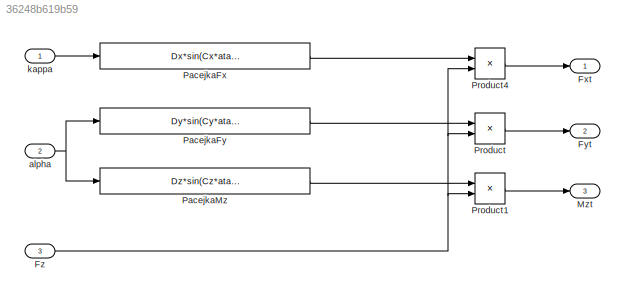
MODEL slx_36248b619b59
KIND model
CONFIG AbsTol = auto
CONFIG EnableMultiTasking = off
CONFIG FixedStep = auto
CONFIG MaxStep = auto
CONFIG MinStep = auto
CONFIG RelTol = 1e-3
CONFIG SampleTimeConstraint = Unconstrained
CONFIG Solver = ode15s
CONFIG SolverName = ode15s
CONFIG StartTime = 0.0
CONFIG StopTime = 10
BLOCK [Outport] Fxt
  IconDisplay = Port number
  OutDataTypeStr = double
  PortDimensions = 1
  SampleTime = 0
  SamplingMode = Sample based
  SignalType = real
BLOCK [Outport] Fyt
  IconDisplay = Port number
  OutDataTypeStr = double
  Port = 2
  PortDimensions = 1
  SampleTime = 0
  SamplingMode = Sample based
  SignalType = real
BLOCK [Inport] Fz
  IconDisplay = Port number
  OutDataTypeStr = double
  Port = 3
  PortDimensions = 1
  SamplingMode = Sample based
  SignalType = real
BLOCK [Outport] Mzt
  IconDisplay = Port number
  OutDataTypeStr = double
  Port = 3
  PortDimensions = 1
  SampleTime = 0
  SamplingMode = Sample based
  SignalType = real
BLOCK [Fcn] PacejkaFx
  Expr = Dx*sin(Cx*atan(Bx*u-Ex*(Bx*u-atan(Bx*u))))
BLOCK [Fcn] PacejkaFy
  Expr = Dy*sin(Cy*atan(By*u-Ey*(By*u-atan(By*u))))
BLOCK [Fcn] PacejkaMz
  Expr = Dz*sin(Cz*atan(Bz*u-Ez*(Bz*u-atan(Bz*u))))
BLOCK [Product] Product
  InputSameDT = off
  OutDataTypeStr = Inherit: Inherit via internal rule
  Ports = [2, 1]
  RndMeth = Floor
  SaturateOnIntegerOverflow = off
BLOCK [Product] Product1
  InputSameDT = off
  OutDataTypeStr = Inherit: Inherit via internal rule
  Ports = [2, 1]
  RndMeth = Floor
  SaturateOnIntegerOverflow = off
BLOCK [Product] Product4
  InputSameDT = off
  OutDataTypeStr = Inherit: Inherit via internal rule
  Ports = [2, 1]
  RndMeth = Floor
  SaturateOnIntegerOverflow = off
BLOCK [Inport] alpha
  IconDisplay = Port number
  OutDataTypeStr = double
  Port = 2
  PortDimensions = 1
  SampleTime = 0
  SamplingMode = Sample based
  SignalType = real
BLOCK [Inport] kappa
  IconDisplay = Port number
  OutDataTypeStr = double
  PortDimensions = 1
  SampleTime = 0
  SamplingMode = Sample based
  SignalType = real
NET Fz:1 -> Product1:2, Product4:2, Product:2
LINE PacejkaFx:1 -> Product4:1
LINE PacejkaFy:1 -> Product:1
LINE PacejkaMz:1 -> Product1:1
LINE Product1:1 -> Mzt:1
LINE Product4:1 -> Fxt:1
LINE Product:1 -> Fyt:1
NET alpha:1 -> PacejkaFy:1, PacejkaMz:1
LINE kappa:1 -> PacejkaFx:1
note: NET lines group one-source signal fan-out (src -> all destinations, sorted); 1:1 wires keep LINE
